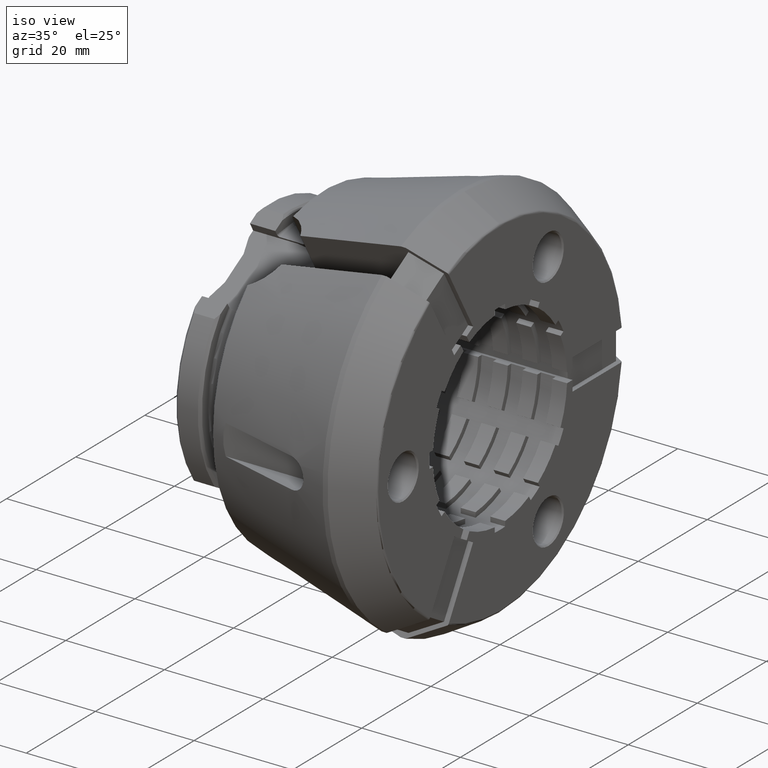
[diagram: clean part render]
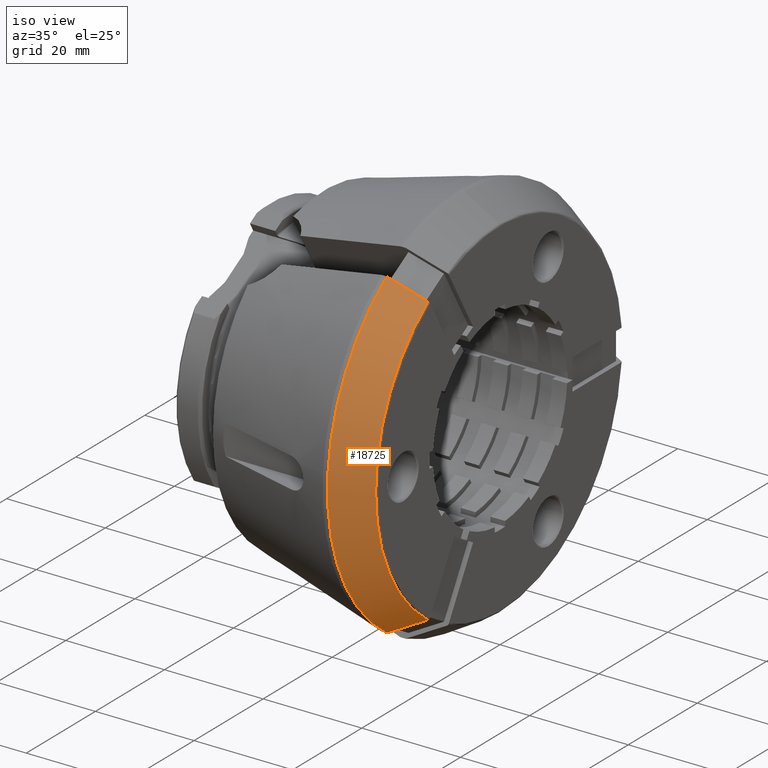
[diagram: same view with one face highlighted and labeled with its STEP entity id]
A machine part, iso view. The second image highlights one B-rep face of the part: STEP entity #18725.
In plain terms, the highlighted conical surface has half-angle 30 deg.
Its self-contained STEP definition (entity closure, byte-faithful):
#29 = ORIENTED_EDGE ( 'NONE', *, *, #12707, .F. ) ;
#299 = CARTESIAN_POINT ( 'NONE',  ( -0.2499999999999990300, -20.47694402495133300, -29.16710743496031100 ) ) ;
#1890 = B_SPLINE_CURVE_WITH_KNOTS ( 'NONE', 3,
 ( #4819, #4795, #4772, #4732 ),
 .UNSPECIFIED., .F., .F.,
 ( 4, 4 ),
 ( 2.311673063096445900E-007, 0.008032491004484092900 ),
 .UNSPECIFIED. ) ;
#1892 = B_SPLINE_CURVE_WITH_KNOTS ( 'NONE', 3,
 ( #18651, #18588, #18507, #18395 ),
 .UNSPECIFIED., .F., .F.,
 ( 4, 4 ),
 ( 2.311233870879795600E-007, 0.008032490960564868700 ),
 .UNSPECIFIED. ) ;
#2638 = CIRCLE ( 'NONE', #5743, 35.63741562913207900 ) ;
#2840 = VERTEX_POINT ( 'NONE', #299 ) ;
#4377 = CARTESIAN_POINT ( 'NONE',  ( -7.199999999999999300, -22.49031794029460600, -32.65437335096881100 ) ) ;
#4732 = CARTESIAN_POINT ( 'NONE',  ( -7.199999999999999300, -22.49031794029460600, -32.65437335096881100 ) ) ;
#4772 = CARTESIAN_POINT ( 'NONE',  ( -4.883125069250019700, -21.81937306159120700, -31.49226273197636800 ) ) ;
#4795 = CARTESIAN_POINT ( 'NONE',  ( -2.566434756345225200, -21.14826875735860800, -30.32987597986731700 ) ) ;
#4819 = CARTESIAN_POINT ( 'NONE',  ( -0.2499999999999990300, -20.47694402495133300, -29.16710743496031100 ) ) ;
#5420 = CARTESIAN_POINT ( 'NONE',  ( -7.200000000000000200, -22.49031794029505300, 32.65437335096849800 ) ) ;
#5743 = AXIS2_PLACEMENT_3D ( 'NONE', #19495, #19472, #19493 ) ;
#6505 = DIRECTION ( 'NONE',  ( 0.0000000000000000000, 0.0000000000000000000, 1.000000000000000000 ) ) ;
#6978 = AXIS2_PLACEMENT_3D ( 'NONE', #9163, #9101, #9086 ) ;
#7320 = FACE_OUTER_BOUND ( 'NONE', #17332, .T. ) ;
#7811 = CARTESIAN_POINT ( 'NONE',  ( -0.2499999999999995800, -20.47694402495173800, 29.16710743496003000 ) ) ;
#7876 = VERTEX_POINT ( 'NONE', #5420 ) ;
#8712 = VERTEX_POINT ( 'NONE', #7811 ) ;
#9086 = DIRECTION ( 'NONE',  ( 0.0000000000000000000, 0.0000000000000000000, -1.000000000000000000 ) ) ;
#9101 = DIRECTION ( 'NONE',  ( 1.000000000000000000, -0.0000000000000000000, -0.0000000000000000000 ) ) ;
#9163 = CARTESIAN_POINT ( 'NONE',  ( -7.200000000000000200, 0.0000000000000000000, 0.0000000000000000000 ) ) ;
#9959 = ORIENTED_EDGE ( 'NONE', *, *, #12505, .F. ) ;
#10101 = ORIENTED_EDGE ( 'NONE', *, *, #12768, .F. ) ;
#10140 = ORIENTED_EDGE ( 'NONE', *, *, #12232, .T. ) ;
#10869 = CONICAL_SURFACE ( 'NONE', #18491, 35.63741562913207900, 0.5235987755983002600 ) ;
#12232 = EDGE_CURVE ( 'NONE', #7876, #14710, #14753, .T. ) ;
#12505 = EDGE_CURVE ( 'NONE', #2840, #14710, #1890, .T. ) ;
#12707 = EDGE_CURVE ( 'NONE', #8712, #2840, #2638, .T. ) ;
#12768 = EDGE_CURVE ( 'NONE', #7876, #8712, #1892, .T. ) ;
#14065 = CARTESIAN_POINT ( 'NONE',  ( -0.2499999999999992500, 0.0000000000000000000, 0.0000000000000000000 ) ) ;
#14710 = VERTEX_POINT ( 'NONE', #4377 ) ;
#14753 = CIRCLE ( 'NONE', #6978, 39.64999999999999100 ) ;
#15653 = DIRECTION ( 'NONE',  ( -1.000000000000000000, 0.0000000000000000000, 0.0000000000000000000 ) ) ;
#17332 = EDGE_LOOP ( 'NONE', ( #9959, #29, #10101, #10140 ) ) ;
#18395 = CARTESIAN_POINT ( 'NONE',  ( -0.2499999999999995800, -20.47694402495173800, 29.16710743496003000 ) ) ;
#18491 = AXIS2_PLACEMENT_3D ( 'NONE', #14065, #15653, #6505 ) ;
#18507 = CARTESIAN_POINT ( 'NONE',  ( -2.566434756345230100, -21.14826875735902700, 30.32987597986702300 ) ) ;
#18588 = CARTESIAN_POINT ( 'NONE',  ( -4.883125069250020500, -21.81937306159164400, 31.49226273197606200 ) ) ;
#18651 = CARTESIAN_POINT ( 'NONE',  ( -7.200000000000000200, -22.49031794029505300, 32.65437335096849800 ) ) ;
#18725 = ADVANCED_FACE ( 'NONE', ( #7320 ), #10869, .T. ) ;
#19472 = DIRECTION ( 'NONE',  ( 1.000000000000000000, -0.0000000000000000000, -0.0000000000000000000 ) ) ;
#19493 = DIRECTION ( 'NONE',  ( 0.0000000000000000000, 0.0000000000000000000, -1.000000000000000000 ) ) ;
#19495 = CARTESIAN_POINT ( 'NONE',  ( -0.2499999999999992500, 0.0000000000000000000, 0.0000000000000000000 ) ) ;